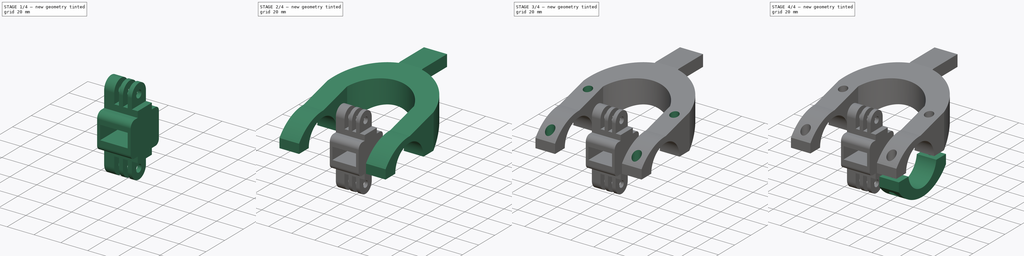
[diagram: build sequence overview — one tinted view per stage of 4, left to right]
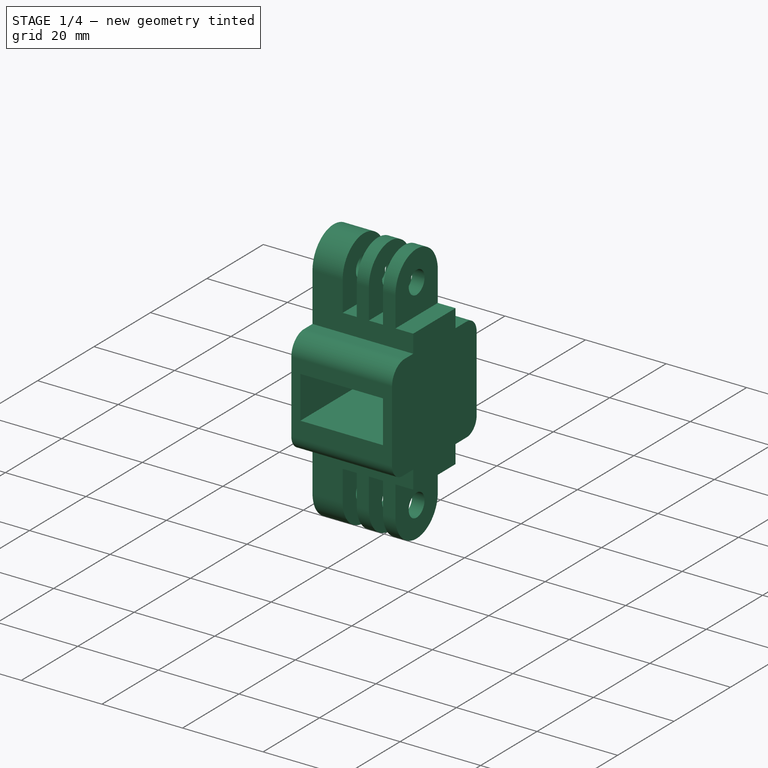
[diagram: stage 1 of 4 — iso view after this stage's code; geometry added in this stage tinted green]
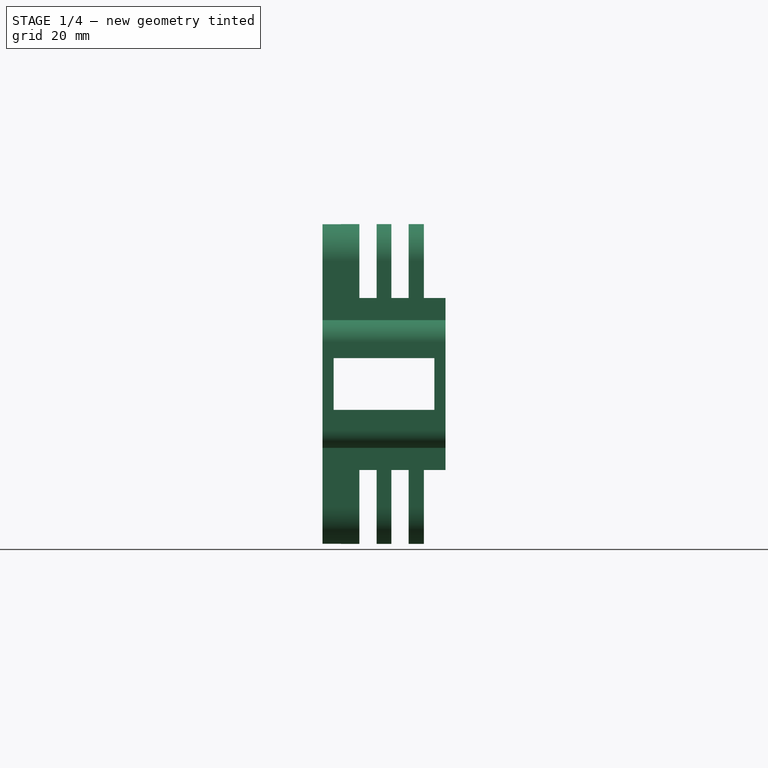
[diagram: stage 1 of 4 — front view after this stage's code; geometry added in this stage tinted green]
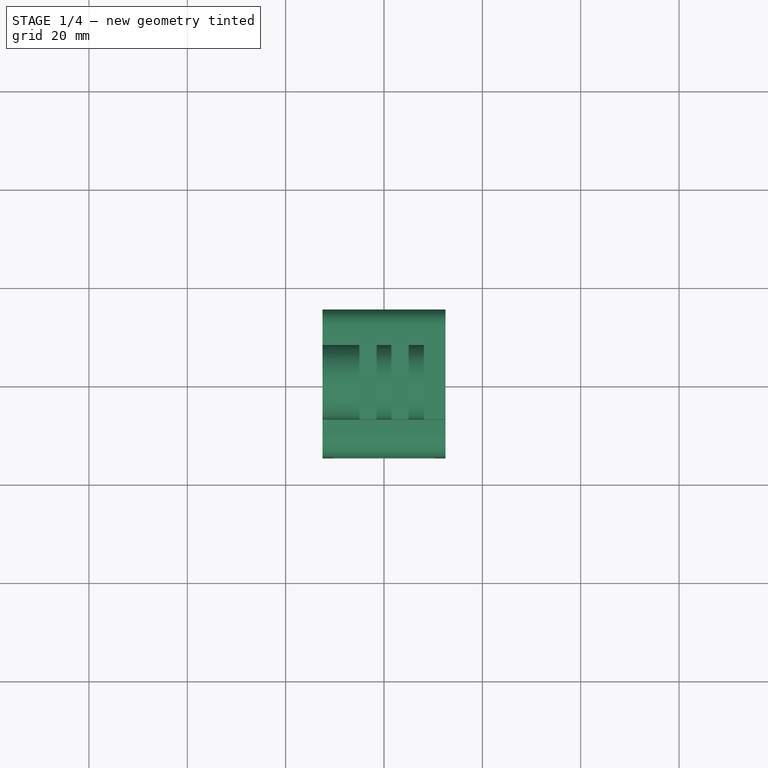
[diagram: stage 1 of 4 — top view after this stage's code; geometry added in this stage tinted green]
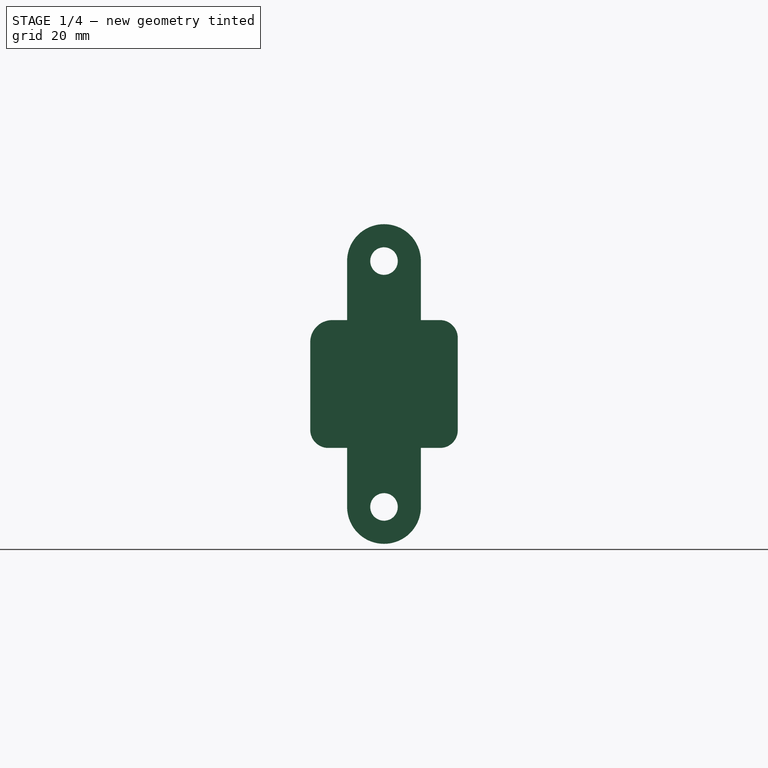
[diagram: stage 1 of 4 — right view after this stage's code; geometry added in this stage tinted green]
FCSTD DOCUMENT  (FreeCAD 0.21Rpre_29277.fc34 (Git))
Label: light-mount-v3
License: All rights reserved
LicenseURL: http://en.wikipedia.org/wiki/All_rights_reserved
objects: Sketcher::SketchObject×12, PartDesign::Pocket×8, PartDesign::Pad×4, PartDesign::Body×3
note: 39 computed .brp shape members not serialized (recipe doc carries the construction recipe); baked Part::Feature solids carry a one-line shape summary decoded from their .brp

FEATURE [Sketcher::SketchObject] Sketch008
  FullyConstrained = true
  MapMode = 5
  Placement = pos=(0,0,0) rot=(0.57735,0.57735,0.57735;2.0944rad)
  Support = -> [YZ_Plane002]
  sketch-geometry (21):
    g0: LineSegment StartX=7.5 StartY=25 StartZ=0 EndX=7.5 EndY=13 EndZ=0
    g1: LineSegment StartX=-7.5 StartY=-25 StartZ=0 EndX=-7.5 EndY=-13 EndZ=0
    g2: Circle CenterX=0 CenterY=25 CenterZ=0 NormalX=0 NormalY=0 NormalZ=1 AngleXU=0 Radius=2.8
    g3: ArcOfCircle CenterX=0 CenterY=25 CenterZ=0 NormalX=0 NormalY=0 NormalZ=1 AngleXU=0 Radius=7.5 StartAngle=0 EndAngle=3.14159
    g4: Circle CenterX=0 CenterY=-25 CenterZ=0 NormalX=0 NormalY=0 NormalZ=1 AngleXU=0 Radius=2.8
    g5: ArcOfCircle CenterX=0 CenterY=-25 CenterZ=0 NormalX=0 NormalY=0 NormalZ=1 AngleXU=0 Radius=7.5 StartAngle=3.14159 EndAngle=6.28319
    g6: LineSegment StartX=-10.498 StartY=13 StartZ=0 EndX=-7.5 EndY=13 EndZ=0
    g7: LineSegment StartX=15 StartY=9.37695 StartZ=0 EndX=15 EndY=-9.41399 EndZ=0
    g8: LineSegment StartX=11.414 StartY=-13 StartZ=0 EndX=7.5 EndY=-13 EndZ=0
    g9: LineSegment StartX=-15 StartY=-9.32341 StartZ=0 EndX=-15 EndY=8.49796 EndZ=0
    g10: LineSegment StartX=7.5 StartY=13 StartZ=0 EndX=11.377 EndY=13 EndZ=0
    g11: LineSegment StartX=-7.5 StartY=13 StartZ=0 EndX=-7.5 EndY=25 EndZ=0
    g12: LineSegment StartX=7.5 StartY=-13 StartZ=0 EndX=7.5 EndY=-25 EndZ=0
    g13: LineSegment StartX=-7.5 StartY=-13 StartZ=0 EndX=-11.3234 EndY=-13 EndZ=0
    g14: ArcOfCircle CenterX=-10.498 CenterY=8.49796 CenterZ=0 NormalX=0 NormalY=0 NormalZ=1 AngleXU=0 Radius=4.50204 StartAngle=1.5708 EndAngle=3.14159
    g15: GeomPoint X=-15 Y=13 Z=0
    g16: ArcOfCircle CenterX=11.377 CenterY=9.37695 CenterZ=0 NormalX=0 NormalY=0 NormalZ=1 AngleXU=0 Radius=3.62305 StartAngle=0 EndAngle=1.5708
    g17: GeomPoint X=15 Y=13 Z=0
    g18: ArcOfCircle CenterX=-11.3234 CenterY=-9.32341 CenterZ=0 NormalX=0 NormalY=0 NormalZ=1 AngleXU=0 Radius=3.67659 StartAngle=3.14159 EndAngle=4.71239
    g19: ArcOfCircle CenterX=11.414 CenterY=-9.41399 CenterZ=0 NormalX=0 NormalY=0 NormalZ=1 AngleXU=0 Radius=3.58601 StartAngle=4.71239 EndAngle=6.28319
    g20: GeomPoint X=15 Y=-13 Z=0
  constraints (56):
    c: Vertical(g1)
    c: Radius(g2) = 2.8
    c: Coincident(g3,g2)
    c: DistanceY(g2) = 25
    c: Coincident(g0,g3)
    c: Coincident(g11,g3)
    c: Coincident(g4,g5)
    c: DistanceX(g4) = 0
    c: DistanceY(g4) = -25
    c: Radius(g4) = 2.8
    c: Radius(g5) = 7.5
    c: DistanceX(g2) = 0
    c: DistanceY(g0) = 25
    c: DistanceY(g11) = 25
    c: DistanceY(g1) = -25
    c: DistanceY(g12) = -25
    c: Coincident(g12,g5)
    c: Coincident(g1,g5)
    c: Horizontal(g6)
    c: Vertical(g7)
    c: Vertical(g9)
    c: DistanceX(g15) = -15
    c: DistanceY(g15) = 13
    c: DistanceX(g17) = 15
    c: DistanceY(g20) = -13
    c: Coincident(g11,g6)
    c: Coincident(g0,g10)
    c: Coincident(g8,g12)
    c: Coincident(g13,g1)
    c: DistanceX(g3) = -7.5
    c: PointOnObject(g15,g6)
    c: PointOnObject(g15,g9)
    c: Tangent(g6,g14) = 1.5708
    c: Tangent(g9,g14) = 1.5708
    c: DistanceX(g14) = -10.498
    c: PointOnObject(g17,g10)
    c: PointOnObject(g17,g7)
    c: Tangent(g10,g16) = 1.5708
    c: Tangent(g7,g16) = 1.5708
    c: DistanceX(g16) = 11.377
    c: Tangent(g13,g18) = 1.5708
    c: Tangent(g9,g18) = 1.5708
    c: DistanceX(g0,g18) = -18.8234
    c: DistanceY(g0,g18) = -22.3234
    c: DistanceX(g16,g18) = -22.7004
    c: DistanceY(g16,g18) = -18.7004
    c: DistanceY(g18) = -9.32341
    c: PointOnObject(g20,g8)
    c: PointOnObject(g20,g7)
    c: Tangent(g8,g19) = 1.5708
    c: Tangent(g7,g19) = 1.5708
    c: DistanceX(g19) = 11.414
    c: DistanceX(g13) = -11.3234
    c: DistanceX(g8) = 11.414
    c: DistanceX(g6) = -7.5
    c: DistanceX(g8) = 7.5
FEATURE [PartDesign::Pad] Pad003  label="tarto-test"
  Direction = (1,-2e-16,3e-16)
  Length = 25
  Length2 = 10
  Midplane = true
  Placement = pos=(0,0,0) rot=(0.57735,0.57735,0.57735;2.0944rad)
  Profile = -> Sketch008
  ReferenceAxis = -> Sketch008 [N_Axis]
  Type = 0
FEATURE [PartDesign::Body] Body  label="felso-tarto"
  Group = -> [Sketch003,Pad001,Sketch006,Pad002,Sketch007,Pocket002,Sketch004,Sketch005,Pocket003,Pocket004,Sketch014,Pocket010]
  Origin = -> Origin
  Tip = -> Pocket010
FEATURE [Sketcher::SketchObject] Sketch015
  FullyConstrained = true
  MapMode = 5
  Placement = pos=(0,0,0) rot=(1,0,0;1.5708rad)
  Support = -> [XZ_Plane002]
  sketch-geometry (28):
    g0: LineSegment StartX=-10.25 StartY=5.25 StartZ=0 EndX=10.25 EndY=5.25 EndZ=0
    g1: LineSegment StartX=10.25 StartY=5.25 StartZ=0 EndX=10.25 EndY=-5.25 EndZ=0
    g2: LineSegment StartX=10.25 StartY=-5.25 StartZ=0 EndX=-10.25 EndY=-5.25 EndZ=0
    g3: LineSegment StartX=-10.25 StartY=-5.25 StartZ=0 EndX=-10.25 EndY=5.25 EndZ=0
    g4: LineSegment StartX=1.5 StartY=32.5 StartZ=0 EndX=5 EndY=32.5 EndZ=0
    g5: LineSegment StartX=5 StartY=32.5 StartZ=0 EndX=5 EndY=17.5 EndZ=0
    g6: LineSegment StartX=5 StartY=17.5 StartZ=0 EndX=1.5 EndY=17.5 EndZ=0
    g7: LineSegment StartX=1.5 StartY=17.5 StartZ=0 EndX=1.5 EndY=32.5 EndZ=0
    g8: LineSegment StartX=8.1 StartY=32.5 StartZ=0 EndX=23.1 EndY=32.5 EndZ=0
    g9: LineSegment StartX=23.1 StartY=32.5 StartZ=0 EndX=23.1 EndY=17.5 EndZ=0
    g10: LineSegment StartX=23.1 StartY=17.5 StartZ=0 EndX=8.1 EndY=17.5 EndZ=0
    g11: LineSegment StartX=8.1 StartY=17.5 StartZ=0 EndX=8.1 EndY=32.5 EndZ=0
    g12: LineSegment StartX=-1.5 StartY=32.5 StartZ=0 EndX=-5 EndY=32.5 EndZ=0
    g13: LineSegment StartX=-5 StartY=32.5 StartZ=0 EndX=-5 EndY=17.5 EndZ=0
    g14: LineSegment StartX=-5 StartY=17.5 StartZ=0 EndX=-1.5 EndY=17.5 EndZ=0
    g15: LineSegment StartX=-1.5 StartY=17.5 StartZ=0 EndX=-1.5 EndY=32.5 EndZ=0
    g16: LineSegment StartX=1.5 StartY=-32.5 StartZ=0 EndX=5 EndY=-32.5 EndZ=0
    g17: LineSegment StartX=5 StartY=-32.5 StartZ=0 EndX=5 EndY=-17.5 EndZ=0
    g18: LineSegment StartX=5 StartY=-17.5 StartZ=0 EndX=1.5 EndY=-17.5 EndZ=0
    g19: LineSegment StartX=1.5 StartY=-17.5 StartZ=0 EndX=1.5 EndY=-32.5 EndZ=0
    g20: LineSegment StartX=8.1 StartY=-32.5 StartZ=0 EndX=23.1 EndY=-32.5 EndZ=0
    g21: LineSegment StartX=23.1 StartY=-32.5 StartZ=0 EndX=23.1 EndY=-17.5 EndZ=0
    g22: LineSegment StartX=23.1 StartY=-17.5 StartZ=0 EndX=8.1 EndY=-17.5 EndZ=0
    g23: LineSegment StartX=8.1 StartY=-17.5 StartZ=0 EndX=8.1 EndY=-32.5 EndZ=0
    g24: LineSegment StartX=-1.5 StartY=-32.5 StartZ=0 EndX=-5 EndY=-32.5 EndZ=0
    g25: LineSegment StartX=-5 StartY=-32.5 StartZ=0 EndX=-5 EndY=-17.5 EndZ=0
    g26: LineSegment StartX=-5 StartY=-17.5 StartZ=0 EndX=-1.5 EndY=-17.5 EndZ=0
    g27: LineSegment StartX=-1.5 StartY=-17.5 StartZ=0 EndX=-1.5 EndY=-32.5 EndZ=0
  constraints (84):
    c: Coincident(g0,g1)
    c: Coincident(g1,g2)
    c: Coincident(g2,g3)
    c: Coincident(g3,g0)
    c: Horizontal(g0)
    c: Horizontal(g2)
    c: Vertical(g1)
    c: Vertical(g3)
    c: DistanceX(g0,g0) = 20.5
    c: DistanceY(g1,g1) = 10.5
    c: DistanceX(g0) = 10.25
    c: DistanceY(g0) = 5.25
    c: Coincident(g4,g5)
    c: Coincident(g5,g6)
    c: Coincident(g6,g7)
    c: Coincident(g7,g4)
    c: Horizontal(g4)
    c: Horizontal(g6)
    c: Vertical(g5)
    c: Vertical(g7)
    c: Coincident(g8,g9)
    c: Coincident(g9,g10)
    c: Coincident(g10,g11)
    c: Coincident(g11,g8)
    c: Horizontal(g8)
    c: Horizontal(g10)
    c: Vertical(g9)
    c: Vertical(g11)
    c: DistanceX(g4,g4) = 3.5
    c: DistanceX(g8,g8) = 15
    c: DistanceX(g4) = 1.5
    c: DistanceY(g4) = 32.5
    c: DistanceX(g8) = 8.1
    c: DistanceY(g8) = 32.5
    c: DistanceY(g9,g9) = 15
    c: DistanceY(g5,g5) = 15
    c: Coincident(g12,g13)
    c: Coincident(g13,g14)
    c: Coincident(g14,g15)
    c: Coincident(g15,g12)
    c: Horizontal(g12)
    c: Horizontal(g14)
    c: Vertical(g13)
    c: Vertical(g15)
    c: DistanceX(g12) = -1.5
    c: DistanceY(g12) = 32.5
    c: DistanceX(g14,g14) = 3.5
    c: DistanceY(g13,g13) = 15
    c: Coincident(g16,g17)
    c: Coincident(g17,g18)
    c: Coincident(g18,g19)
    c: Coincident(g19,g16)
    c: Horizontal(g16)
    c: Horizontal(g18)
    c: Vertical(g17)
    c: Vertical(g19)
    c: Coincident(g20,g21)
    c: Coincident(g21,g22)
    c: Coincident(g22,g23)
    c: Coincident(g23,g20)
    c: Horizontal(g20)
    c: Horizontal(g22)
    c: Vertical(g21)
    c: Vertical(g23)
    c: Coincident(g24,g25)
    c: Coincident(g25,g26)
    c: Coincident(g26,g27)
    c: Horizontal(g24)
    c: Horizontal(g26)
    c: Vertical(g25)
    c: DistanceY(g22) = -17.5
    c: DistanceY(g16) = -32.5
    c: DistanceY(g21,g21) = 15
    c: DistanceY(g17,g17) = 15
    c: DistanceY(g25,g25) = 15
    c: DistanceY(g25) = -17.5
    c: DistanceX(g18) = 1.5
    c: DistanceX(g18,g18) = 3.5
    c: Vertical(g27)
    c: DistanceX(g26) = -1.5
    c: DistanceX(g26,g26) = 3.5
    c: DistanceX(g22,g22) = 15
    c: DistanceX(g22) = 8.1
    c: Coincident(g24,g27)
FEATURE [PartDesign::Pocket] Pocket011  label="kivagasok"
  BaseFeature = -> Pad003
  Direction = (0,1,2e-16)
  Length = 30
  Length2 = 5
  Midplane = true
  Placement = pos=(0,0,0) rot=(0.57735,0.57735,0.57735;2.0944rad)
  Profile = -> Sketch015
  ReferenceAxis = -> Sketch015 [N_Axis]
  Type = 0
FEATURE [Sketcher::SketchObject] Sketch016
  AttachmentOffset = pos=(0,0,-12.5) rot=(0,0,1;0rad)
  FullyConstrained = true
  MapMode = 5
  Placement = pos=(-12.5,2.8e-15,-2.8e-15) rot=(0.57735,0.57735,0.57735;2.0944rad)
  Support = -> [YZ_Plane002]
  sketch-geometry (14):
    g0: LineSegment StartX=-2.45 StartY=20.7565 StartZ=0 EndX=2.45 EndY=20.7565 EndZ=0
    g1: LineSegment StartX=2.45 StartY=20.7565 StartZ=0 EndX=4.9 EndY=25 EndZ=0
    g2: LineSegment StartX=4.9 StartY=25 StartZ=0 EndX=2.45 EndY=29.2435 EndZ=0
    g3: LineSegment StartX=2.45 StartY=29.2435 StartZ=0 EndX=-2.45 EndY=29.2435 EndZ=0
    g4: LineSegment StartX=-2.45 StartY=29.2435 StartZ=0 EndX=-4.9 EndY=25 EndZ=0
    g5: LineSegment StartX=-4.9 StartY=25 StartZ=0 EndX=-2.45 EndY=20.7565 EndZ=0
    g6: Circle CenterX=0 CenterY=25 CenterZ=0 NormalX=0 NormalY=0 NormalZ=1 AngleXU=0 Radius=4.9
    g7: LineSegment StartX=2.45 StartY=-20.7565 StartZ=0 EndX=-2.45 EndY=-20.7565 EndZ=0
    g8: LineSegment StartX=-2.45 StartY=-20.7565 StartZ=0 EndX=-4.9 EndY=-25 EndZ=0
    g9: LineSegment StartX=-4.9 StartY=-25 StartZ=0 EndX=-2.45 EndY=-29.2435 EndZ=0
    g10: LineSegment StartX=-2.45 StartY=-29.2435 StartZ=0 EndX=2.45 EndY=-29.2435 EndZ=0
    g11: LineSegment StartX=2.45 StartY=-29.2435 StartZ=0 EndX=4.9 EndY=-25 EndZ=0
    g12: LineSegment StartX=4.9 StartY=-25 StartZ=0 EndX=2.45 EndY=-20.7565 EndZ=0
    g13: Circle CenterX=0 CenterY=-25 CenterZ=0 NormalX=0 NormalY=0 NormalZ=1 AngleXU=0 Radius=4.9
  constraints (34):
    c: Coincident(g0,g1)
    c: Coincident(g1,g2)
    c: Coincident(g2,g3)
    c: Coincident(g3,g4)
    c: Coincident(g4,g5)
    c: Coincident(g5,g0)
    c: Equal(g0, g1-g5) x5
    c: PointOnObject(g0,g6)
    c: PointOnObject(g1,g6)
    c: PointOnObject(g2,g6)
    c: PointOnObject(g3,g6)
    c: PointOnObject(g4,g6)
    c: PointOnObject(g5,g6)
    c: PointOnObject(g6,g-2)
    c: Coincident(g7,g8)
    c: Coincident(g8,g9)
    c: Coincident(g9,g10)
    c: Coincident(g10,g11)
    c: Coincident(g11,g12)
    c: Coincident(g12,g7)
    c: Equal(g7, g8-g12) x5
    c: PointOnObject(g7,g13)
    c: PointOnObject(g8,g13)
    c: PointOnObject(g9,g13)
    c: PointOnObject(g10,g13)
    c: PointOnObject(g11,g13)
    c: PointOnObject(g12,g13)
    c: PointOnObject(g13,g-2)
    c: Horizontal(g3)
    c: Horizontal(g7)
    c: DistanceY(g6) = 25
    c: DistanceY(g13) = -25
    c: Radius(g6) = 4.9
    c: Radius(g13) = 4.9
FEATURE [PartDesign::Pocket] Pocket012  label="anya-hely"
  BaseFeature = -> Pocket011
  Direction = (-1,2e-16,-3e-16)
  Length = 3.5
  Length2 = 5
  Placement = pos=(0,0,0) rot=(0.57735,0.57735,0.57735;2.0944rad)
  Profile = -> Sketch016
  ReferenceAxis = -> Sketch016 [N_Axis]
  Reversed = true
  Type = 0
FEATURE [PartDesign::Body] Body002  label="gopro-mount"
  Group = -> [Sketch008,Pad003,Sketch015,Pocket011,Sketch016,Pocket012]
  Origin = -> Origin002
  Placement = pos=(0,120,30) rot=(0,0,1;0rad)
  Tip = -> Pocket012
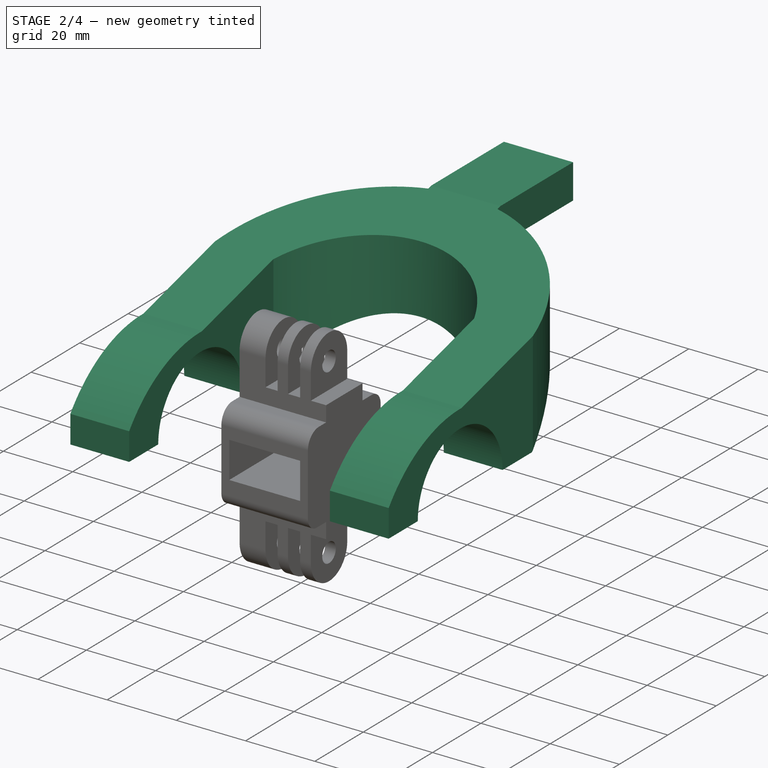
[diagram: stage 2 of 4 — iso view after this stage's code; geometry added in this stage tinted green]
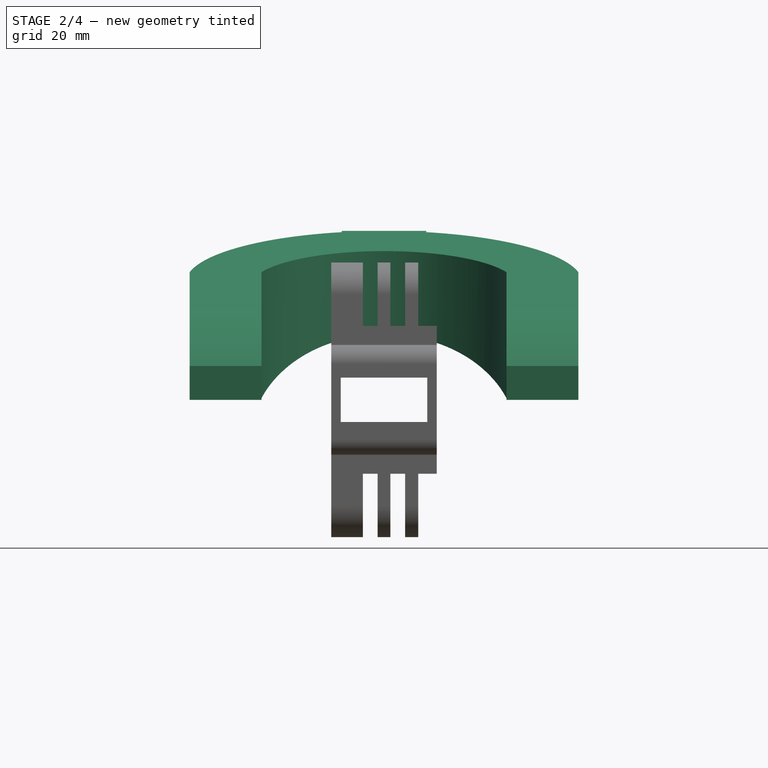
[diagram: stage 2 of 4 — front view after this stage's code; geometry added in this stage tinted green]
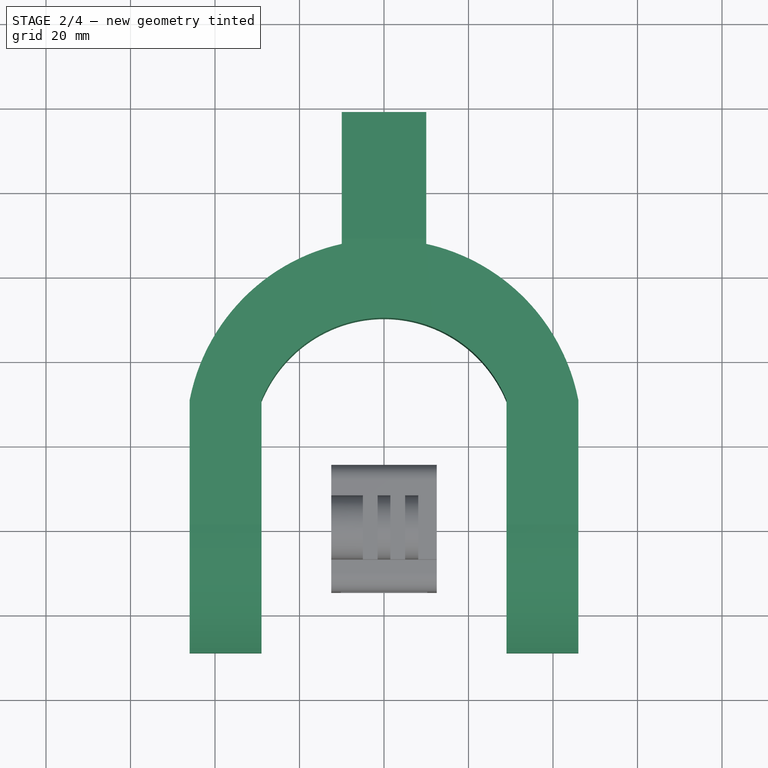
[diagram: stage 2 of 4 — top view after this stage's code; geometry added in this stage tinted green]
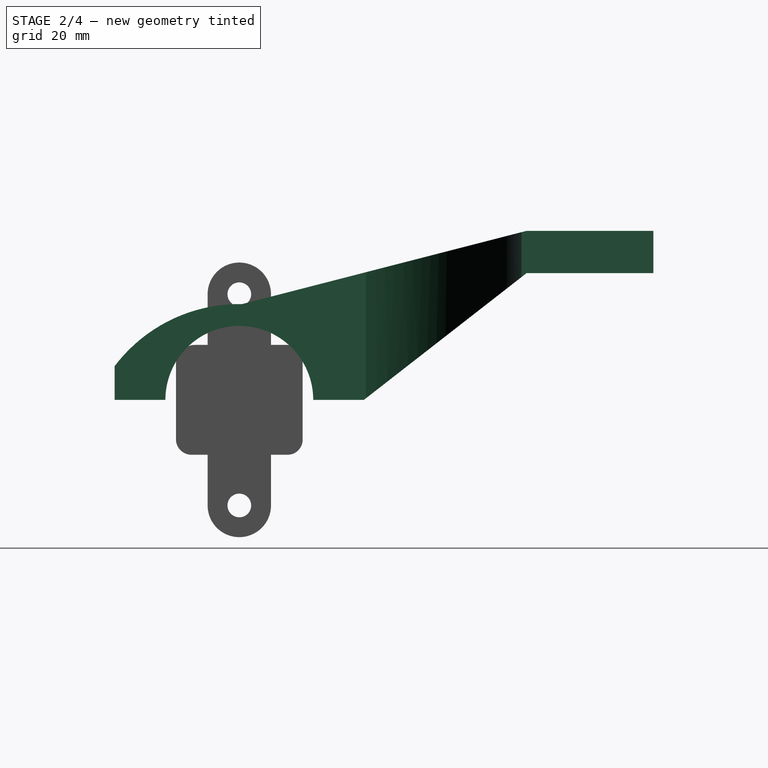
[diagram: stage 2 of 4 — right view after this stage's code; geometry added in this stage tinted green]
FEATURE [PartDesign::Body] Body001  label="also-bilincs"
  Group = -> [Sketch,Pad,Sketch001,Pocket,Sketch002,Pocket001]
  Origin = -> Origin001
  Tip = -> Pocket001
FEATURE [Sketcher::SketchObject] Sketch003
  FullyConstrained = true
  MapMode = 5
  Placement = pos=(0,0,0) rot=(0.57735,0.57735,0.57735;2.0944rad)
  Support = -> [YZ_Plane]
  sketch-geometry (6):
    g0: ArcOfCircle CenterX=0 CenterY=0 CenterZ=0 NormalX=0 NormalY=0 NormalZ=1 AngleXU=0 Radius=17.5 StartAngle=0 EndAngle=3.14159
    g1: LineSegment StartX=-17.5 StartY=2.1e-15 StartZ=0 EndX=-29.5 EndY=0 EndZ=0
    g2: LineSegment StartX=17.5 StartY=0 StartZ=0 EndX=29.5 EndY=0 EndZ=0
    g3: LineSegment StartX=-29.5 StartY=0 StartZ=0 EndX=-29.5 EndY=8 EndZ=0
    g4: LineSegment StartX=29.5 StartY=0 StartZ=0 EndX=29.5 EndY=8 EndZ=0
    g5: ArcOfCircle CenterX=-3e-16 CenterY=-14.3327 CenterZ=0 NormalX=0 NormalY=0 NormalZ=1 AngleXU=0 Radius=37 StartAngle=0.647992 EndAngle=2.4936
  constraints (19):
    c: Coincident(g0,g-1)
    c: PointOnObject(g0,g-1)
    c: PointOnObject(g0,g-1)
    c: Radius(g0) = 17.5
    c: Coincident(g1,g0)
    c: PointOnObject(g1,g-1)
    c: Coincident(g2,g0)
    c: PointOnObject(g2,g-1)
    c: DistanceX(g1,g1) = 12
    c: DistanceX(g2,g2) = 12
    c: Coincident(g3,g1)
    c: Vertical(g3)
    c: Coincident(g4,g2)
    c: Vertical(g4)
    c: DistanceY(g3,g3) = 8
    c: DistanceY(g4,g4) = 8
    c: Coincident(g5,g3)
    c: Coincident(g5,g4)
    c: Radius(g5) = 37
FEATURE [PartDesign::Pad] Pad001  label="felso-bilincs"
  Direction = (1,-2e-16,3e-16)
  Length = 92
  Length2 = 10
  Midplane = true
  Placement = pos=(0,0,0) rot=(0.57735,0.57735,0.57735;2.0944rad)
  Profile = -> Sketch003
  ReferenceAxis = -> Sketch003 [N_Axis]
  Type = 0
FEATURE [Sketcher::SketchObject] Sketch006
  FullyConstrained = true
  MapMode = 5
  Placement = pos=(0,0,0) rot=(0.57735,0.57735,0.57735;2.0944rad)
  Support = -> [YZ_Plane]
  sketch-geometry (6):
    g0: LineSegment StartX=0 StartY=22.5 StartZ=0 EndX=29.5 EndY=3.6e-15 EndZ=0
    g1: LineSegment StartX=0 StartY=22.5 StartZ=0 EndX=68 EndY=40 EndZ=0
    g2: LineSegment StartX=29.5 StartY=3.6e-15 StartZ=0 EndX=68 EndY=30 EndZ=0
    g3: LineSegment StartX=68 StartY=40 StartZ=0 EndX=98 EndY=40 EndZ=0
    g4: LineSegment StartX=98 StartY=40 StartZ=0 EndX=98 EndY=30 EndZ=0
    g5: LineSegment StartX=98 StartY=30 StartZ=0 EndX=68 EndY=30 EndZ=0
  constraints (18):
    c: PointOnObject(g0,g-2)
    c: PointOnObject(g0,g-1)
    c: Coincident(g1,g0)
    c: DistanceY(g0) = 22.5
    c: DistanceX(g1,g1) = 68
    c: DistanceX(g0) = 29.5
    c: DistanceY(g2,g1) = 10
    c: Coincident(g2,g0)
    c: DistanceY(g1) = 40
    c: DistanceX(g2) = 68
    c: Coincident(g1,g3)
    c: Horizontal(g3)
    c: Coincident(g3,g4)
    c: Vertical(g4)
    c: Coincident(g4,g5)
    c: Coincident(g5,g2)
    c: Horizontal(g5)
    c: DistanceX(g3,g3) = 30
FEATURE [PartDesign::Pad] Pad002  label="felso-trt-test"
  BaseFeature = -> Pad001
  Direction = (1,-2e-16,3e-16)
  Length = 92
  Length2 = 10
  Midplane = true
  Placement = pos=(0,0,0) rot=(0.57735,0.57735,0.57735;2.0944rad)
  Profile = -> Sketch006
  ReferenceAxis = -> Sketch006 [N_Axis]
  Type = 0
FEATURE [Sketcher::SketchObject] Sketch007
  AttachmentOffset = pos=(0,0,40) rot=(0,0,1;0rad)
  FullyConstrained = true
  MapMode = 5
  Placement = pos=(0,0,40) rot=(0,0,1;0rad)
  Support = -> [XY_Plane]
  sketch-geometry (16):
    g0: LineSegment StartX=29 StartY=30 StartZ=0 EndX=29 EndY=-29.5 EndZ=0
    g1: LineSegment StartX=29 StartY=-29.5 StartZ=0 EndX=-29 EndY=-29.5 EndZ=0
    g2: LineSegment StartX=-29 StartY=-29.5 StartZ=0 EndX=-29 EndY=30 EndZ=0
    g3: ArcOfCircle CenterX=1.5e-15 CenterY=18 CenterZ=0 NormalX=0 NormalY=0 NormalZ=1 AngleXU=0 Radius=31.3847 StartAngle=0.39234 EndAngle=2.74925
    g4: GeomPoint X=-46 Y=30 Z=0
    g5: GeomPoint X=46 Y=30 Z=0
    g6: ArcOfCircle CenterX=-5.1e-15 CenterY=21 CenterZ=0 NormalX=0 NormalY=0 NormalZ=1 AngleXU=0 Radius=46.8722 StartAngle=0.193211 EndAngle=1.3558
    g7: LineSegment StartX=-10 StartY=66.793 StartZ=0 EndX=-10 EndY=95 EndZ=0
    g8: LineSegment StartX=-10 StartY=95 StartZ=0 EndX=-10 EndY=103 EndZ=0
    g9: LineSegment StartX=-10 StartY=103 StartZ=0 EndX=-46 EndY=103 EndZ=0
    g10: LineSegment StartX=-46 StartY=103 StartZ=0 EndX=-46 EndY=30 EndZ=0
    g11: LineSegment StartX=10 StartY=66.793 StartZ=0 EndX=10 EndY=95 EndZ=0
    g12: LineSegment StartX=10 StartY=95 StartZ=0 EndX=10 EndY=103 EndZ=0
    g13: LineSegment StartX=10 StartY=103 StartZ=0 EndX=46 EndY=103 EndZ=0
    g14: LineSegment StartX=46 StartY=103 StartZ=0 EndX=46 EndY=30 EndZ=0
    g15: ArcOfCircle CenterX=-5.1e-15 CenterY=21 CenterZ=0 NormalX=0 NormalY=0 NormalZ=1 AngleXU=0 Radius=46.8722 StartAngle=1.7858 EndAngle=2.94838
  constraints (46):
    c: Coincident(g0,g1)
    c: Coincident(g1,g2)
    c: Horizontal(g1)
    c: Vertical(g0)
    c: Vertical(g2)
    c: DistanceX(g1) = -29
    c: DistanceY(g1) = -29.5
    c: DistanceX(g0) = 29
    c: DistanceY(g0) = 30
    c: DistanceY(g2) = 30
    c: Coincident(g3,g0)
    c: Coincident(g3,g2)
    c: DistanceY(g3) = 18
    c: DistanceX(g4) = -46
    c: DistanceY(g4) = 30
    c: DistanceX(g5) = 46
    c: DistanceY(g5) = 30
    c: Coincident(g15,g4)
    c: Coincident(g6,g5)
    c: DistanceY(g6) = 21
    c: Coincident(g7,g8)
    c: Vertical(g8)
    c: Coincident(g8,g9)
    c: Horizontal(g9)
    c: Coincident(g9,g10)
    c: Coincident(g10,g15)
    c: Vertical(g10)
    c: Coincident(g11,g12)
    c: Vertical(g12)
    c: Coincident(g12,g13)
    c: Horizontal(g13)
    c: Coincident(g13,g14)
    c: Coincident(g14,g6)
    c: Vertical(g14)
    c: DistanceY(g14,g14) = 73
    c: DistanceY(g12,g12) = 8
    c: DistanceY(g8,g8) = 8
    c: DistanceY(g10,g10) = 73
    c: DistanceX(g13,g13) = 36
    c: DistanceX(g9,g9) = 36
    c: DistanceX(g7,g7) = 0
    c: DistanceX(g11,g11) = 0
    c: Equal(g6,g15)
    c: Coincident(g6,g11)
    c: Coincident(g15,g7)
    c: Coincident(g6,g15)
FEATURE [PartDesign::Pocket] Pocket002  label="felso-test-kivagas"
  BaseFeature = -> Pad002
  Direction = (0,0,-1)
  Length = 40
  Length2 = 5
  Placement = pos=(0,0,0) rot=(0.57735,0.57735,0.57735;2.0944rad)
  Profile = -> Sketch007
  ReferenceAxis = -> Sketch007 [N_Axis]
  Type = 0
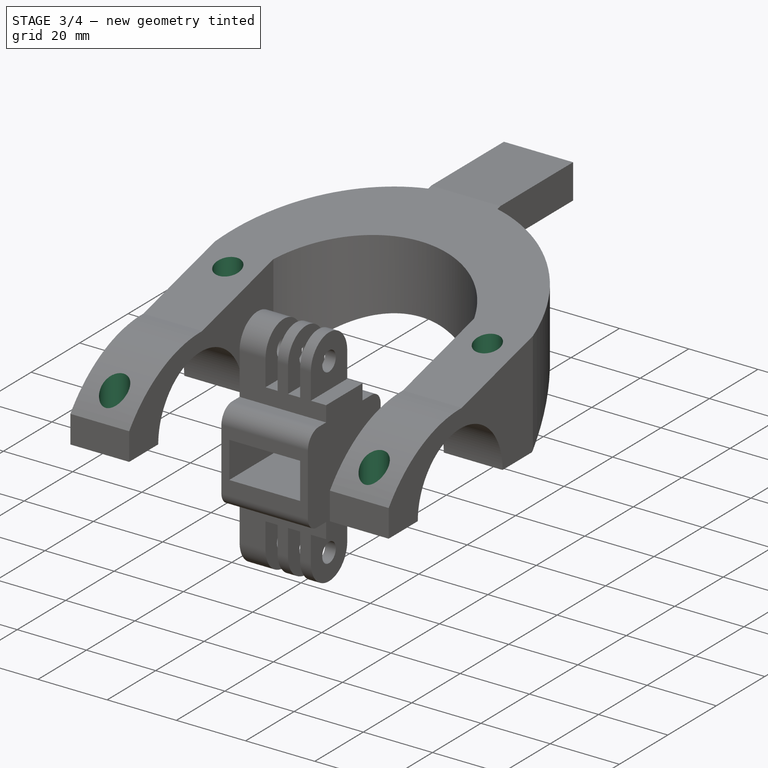
[diagram: stage 3 of 4 — iso view after this stage's code; geometry added in this stage tinted green]
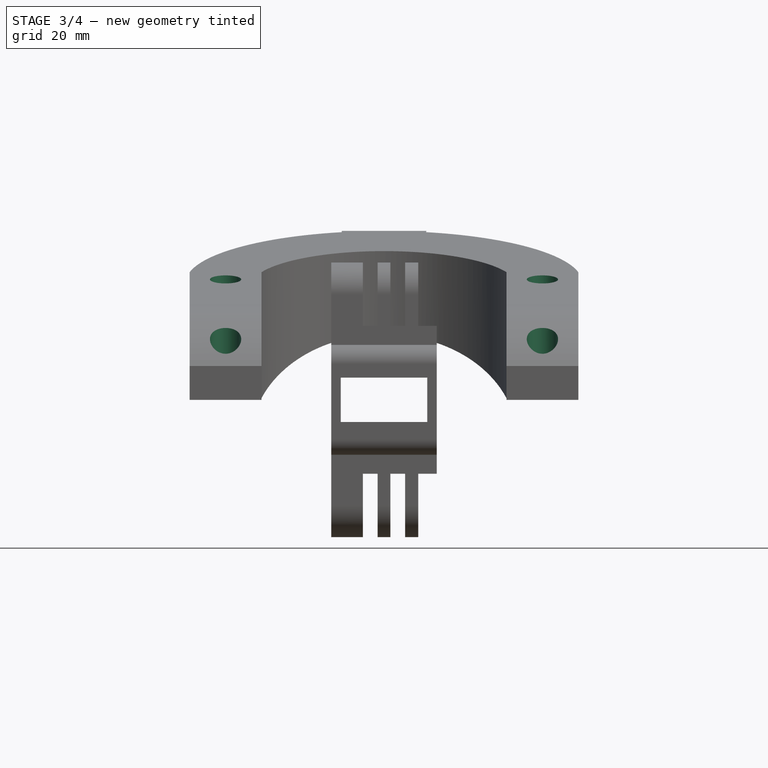
[diagram: stage 3 of 4 — front view after this stage's code; geometry added in this stage tinted green]
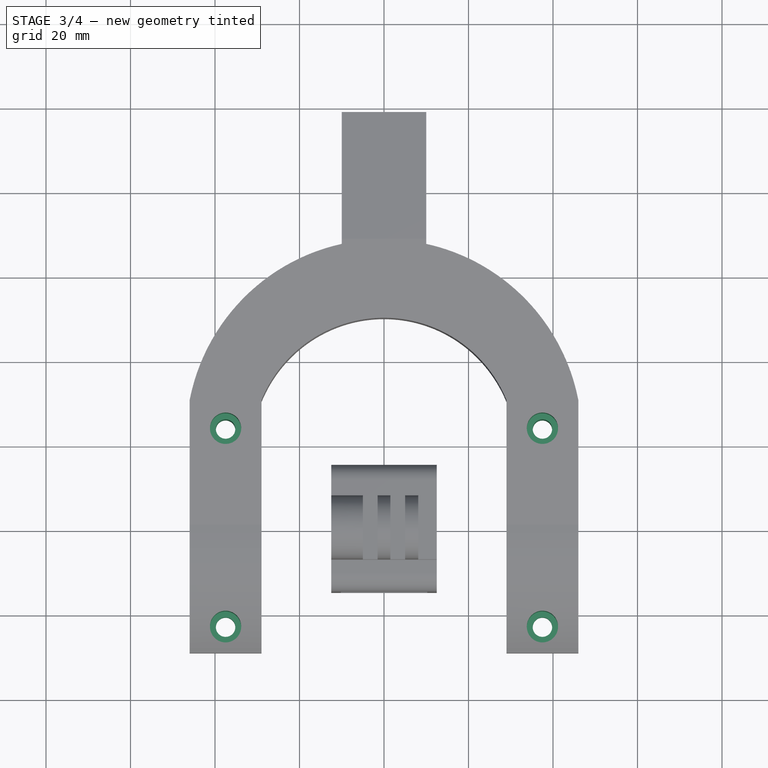
[diagram: stage 3 of 4 — top view after this stage's code; geometry added in this stage tinted green]
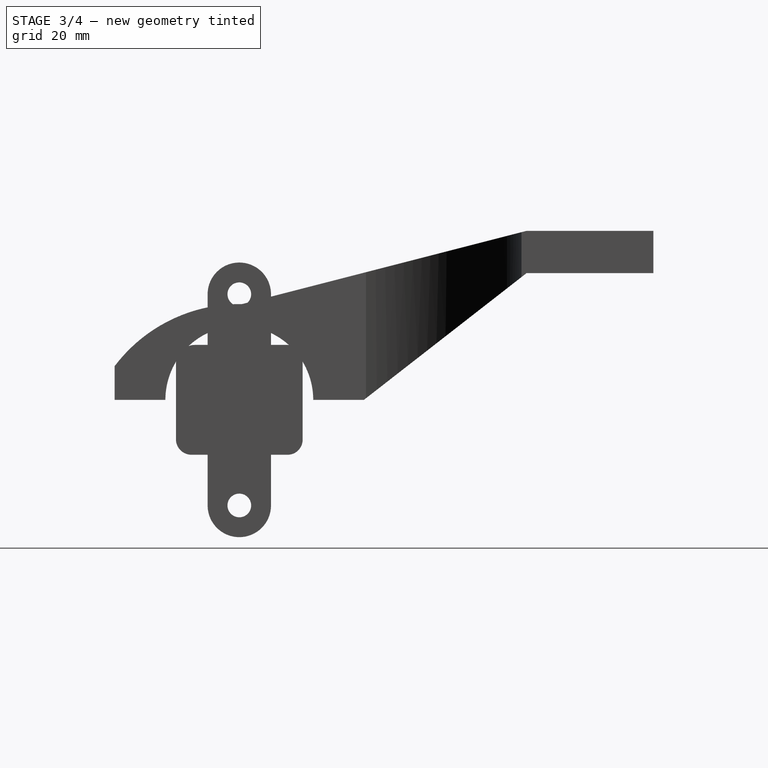
[diagram: stage 3 of 4 — right view after this stage's code; geometry added in this stage tinted green]
FEATURE [Sketcher::SketchObject] Sketch004  label="furatok"
  FullyConstrained = true
  MapMode = 5
  Support = -> [XY_Plane]
  sketch-geometry (4):
    g0: Circle CenterX=37.5 CenterY=23.35 CenterZ=0 NormalX=0 NormalY=0 NormalZ=1 AngleXU=0 Radius=2.3
    g1: Circle CenterX=37.5 CenterY=-23.35 CenterZ=0 NormalX=0 NormalY=0 NormalZ=1 AngleXU=0 Radius=2.3
    g2: Circle CenterX=-37.5 CenterY=23.35 CenterZ=0 NormalX=0 NormalY=0 NormalZ=1 AngleXU=0 Radius=2.3
    g3: Circle CenterX=-37.5 CenterY=-23.35 CenterZ=0 NormalX=0 NormalY=0 NormalZ=1 AngleXU=0 Radius=2.3
  constraints (12):
    c: DistanceX(g0) = 37.5
    c: DistanceY(g0) = 23.35
    c: DistanceX(g1) = 37.5
    c: DistanceY(g1) = -23.35
    c: DistanceX(g3) = -37.5
    c: DistanceY(g3) = -23.35
    c: DistanceX(g2) = -37.5
    c: DistanceY(g2) = 23.35
    c: Radius(g0) = 2.3
    c: Radius(g1) = 2.3
    c: Radius(g3) = 2.3
    c: Radius(g2) = 2.3
FEATURE [Sketcher::SketchObject] Sketch005  label="csv-fejek"
  AttachmentOffset = pos=(0,0,6) rot=(0,0,1;0rad)
  FullyConstrained = true
  MapMode = 5
  Placement = pos=(0,0,6) rot=(0,0,1;0rad)
  Support = -> [XY_Plane]
  sketch-geometry (2):
    g0: Circle CenterX=-37.5 CenterY=-23.35 CenterZ=0 NormalX=0 NormalY=0 NormalZ=1 AngleXU=0 Radius=3.7
    g1: Circle CenterX=37.5 CenterY=-23.35 CenterZ=0 NormalX=0 NormalY=0 NormalZ=1 AngleXU=0 Radius=3.7
  constraints (6):
    c: DistanceX(g0) = -37.5
    c: DistanceY(g0) = -23.35
    c: DistanceX(g1) = 37.5
    c: DistanceY(g1) = -23.35
    c: Radius(g1) = 3.7
    c: Radius(g0) = 3.7
FEATURE [PartDesign::Pocket] Pocket003  label="csv-furatok"
  BaseFeature = -> Pocket002
  Direction = (0,0,-1)
  Length = 25
  Length2 = 5
  Placement = pos=(0,0,0) rot=(0.57735,0.57735,0.57735;2.0944rad)
  Profile = -> Sketch004
  ReferenceAxis = -> Sketch004 [N_Axis]
  Reversed = true
  Type = 0
FEATURE [PartDesign::Pocket] Pocket004  label="csv-fejek-hatso"
  BaseFeature = -> Pocket003
  Direction = (0,0,-1)
  Length = 35
  Length2 = 5
  Placement = pos=(0,0,0) rot=(0.57735,0.57735,0.57735;2.0944rad)
  Profile = -> Sketch005
  ReferenceAxis = -> Sketch005 [N_Axis]
  Reversed = true
  Type = 0
FEATURE [Sketcher::SketchObject] Sketch014
  AttachmentOffset = pos=(0,0,18) rot=(0,0,1;0rad)
  FullyConstrained = true
  MapMode = 5
  Placement = pos=(0,0,18) rot=(0,0,1;0rad)
  Support = -> [XY_Plane]
  sketch-geometry (2):
    g0: Circle CenterX=-37.5 CenterY=23.35 CenterZ=0 NormalX=0 NormalY=0 NormalZ=1 AngleXU=0 Radius=3.7
    g1: Circle CenterX=37.5 CenterY=23.35 CenterZ=0 NormalX=0 NormalY=0 NormalZ=1 AngleXU=0 Radius=3.7
  constraints (6):
    c: DistanceX(g1) = 37.5
    c: DistanceY(g1) = 23.35
    c: DistanceX(g0) = -37.5
    c: DistanceY(g0) = 23.35
    c: Radius(g1) = 3.7
    c: Radius(g0) = 3.7
FEATURE [PartDesign::Pocket] Pocket010  label="csv-fejek-elso"
  BaseFeature = -> Pocket004
  Direction = (0,0,-1)
  Length = 12
  Length2 = 5
  Placement = pos=(0,0,0) rot=(0.57735,0.57735,0.57735;2.0944rad)
  Profile = -> Sketch014
  ReferenceAxis = -> Sketch014 [N_Axis]
  Reversed = true
  Type = 0
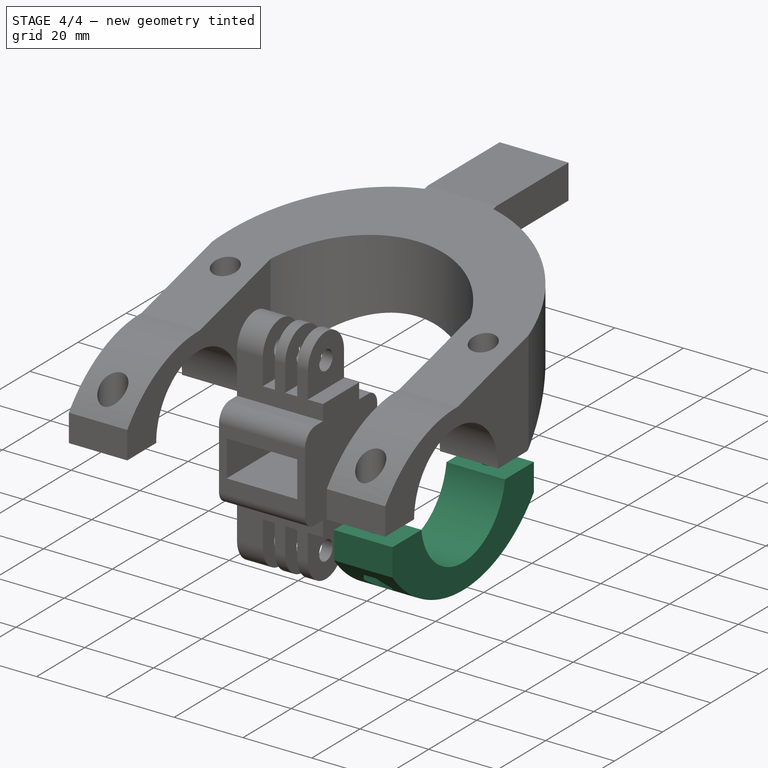
[diagram: stage 4 of 4 — iso view after this stage's code; geometry added in this stage tinted green]
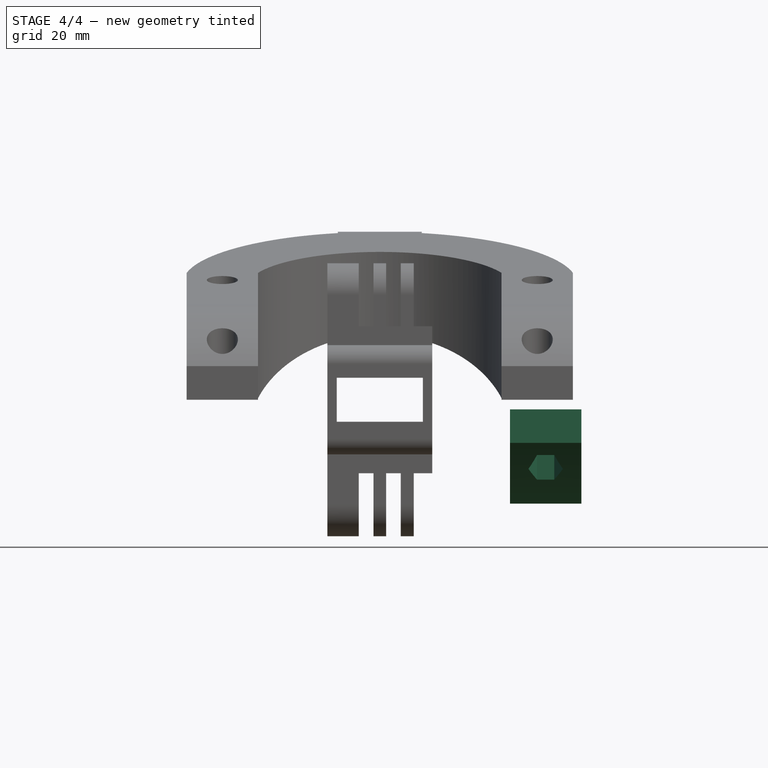
[diagram: stage 4 of 4 — front view after this stage's code; geometry added in this stage tinted green]
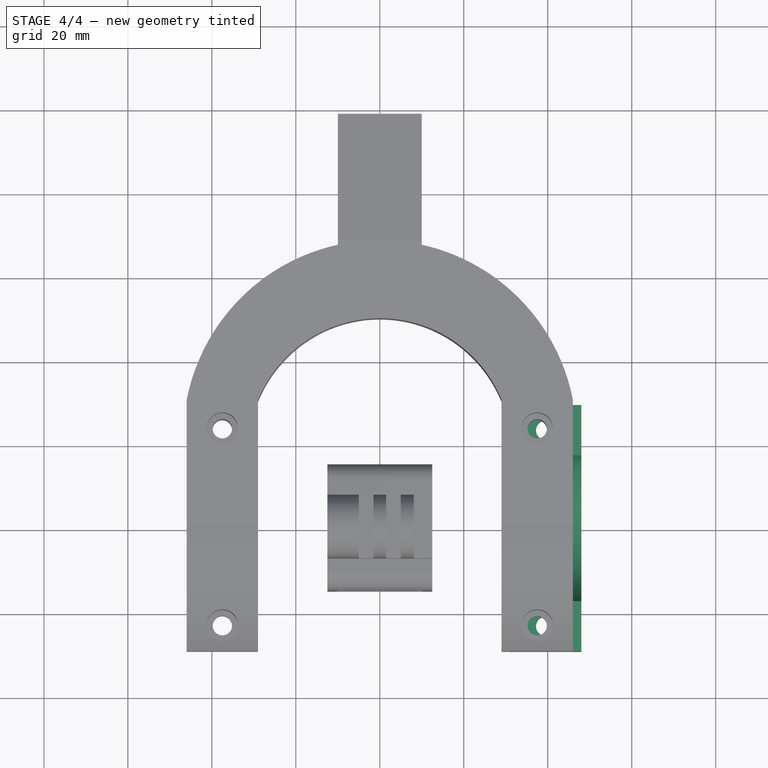
[diagram: stage 4 of 4 — top view after this stage's code; geometry added in this stage tinted green]
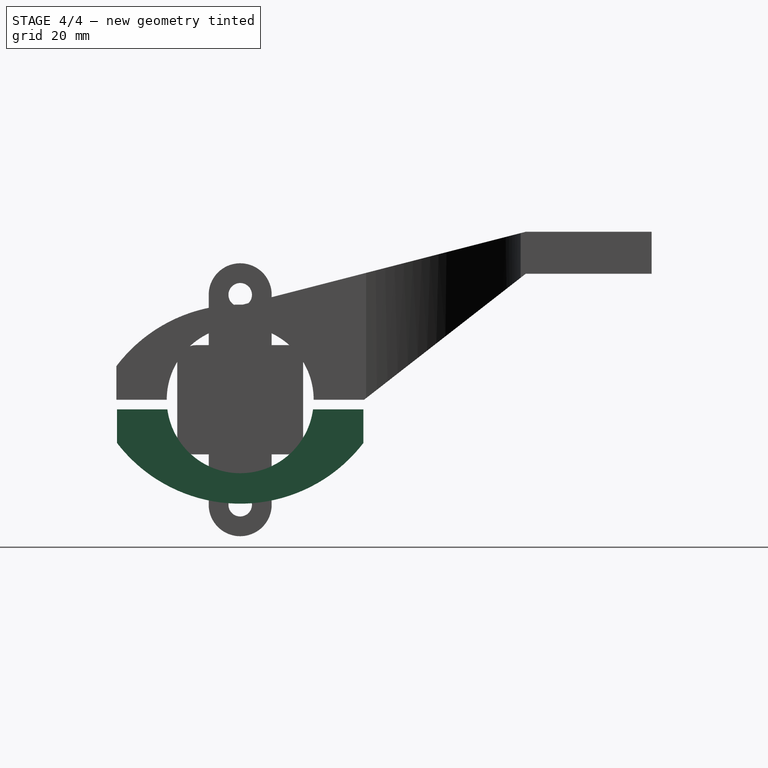
[diagram: stage 4 of 4 — right view after this stage's code; geometry added in this stage tinted green]
FEATURE [Sketcher::SketchObject] Sketch
  AttachmentOffset = pos=(0,0,31) rot=(0,0,1;0rad)
  FullyConstrained = true
  MapMode = 5
  Placement = pos=(31,-6.9e-15,6.9e-15) rot=(0.57735,0.57735,0.57735;2.0944rad)
  Support = -> [YZ_Plane001]
  sketch-geometry (6):
    g0: ArcOfCircle CenterX=0 CenterY=0 CenterZ=0 NormalX=0 NormalY=0 NormalZ=1 AngleXU=0 Radius=17.5 StartAngle=3.27262 EndAngle=6.15216
    g1: LineSegment StartX=-29.35 StartY=-2.28637 StartZ=0 EndX=-17.35 EndY=-2.28637 EndZ=0
    g2: LineSegment StartX=17.35 StartY=-2.28637 StartZ=0 EndX=29.35 EndY=-2.28637 EndZ=0
    g3: LineSegment StartX=-29.35 StartY=-2.28637 StartZ=0 EndX=-29.35 EndY=-10.2864 EndZ=0
    g4: LineSegment StartX=29.35 StartY=-2.28637 StartZ=0 EndX=29.35 EndY=-10.2864 EndZ=0
    g5: ArcOfCircle CenterX=8.9e-15 CenterY=12.2431 CenterZ=0 NormalX=0 NormalY=0 NormalZ=1 AngleXU=0 Radius=37 StartAngle=3.79627 EndAngle=5.62851
  constraints (19):
    c: Coincident(g0,g-1)
    c: Radius(g0) = 17.5
    c: Horizontal(g1)
    c: Horizontal(g2)
    c: DistanceX(g2,g2) = 12
    c: DistanceX(g1,g1) = 12
    c: Coincident(g0,g2)
    c: Coincident(g0,g1)
    c: DistanceX(g0) = -17.35
    c: DistanceX(g0) = 17.35
    c: Coincident(g3,g1)
    c: Vertical(g3)
    c: Coincident(g4,g2)
    c: Vertical(g4)
    c: DistanceY(g4,g4) = 8
    c: DistanceY(g3,g3) = 8
    c: Coincident(g5,g3)
    c: Coincident(g5,g4)
    c: Radius(g5) = 37
FEATURE [PartDesign::Pad] Pad  label="also-bil-j"
  Direction = (1,-2e-16,3e-16)
  Length = 17
  Length2 = 10
  Placement = pos=(0,0,0) rot=(0.57735,0.57735,0.57735;2.0944rad)
  Profile = -> Sketch
  ReferenceAxis = -> Sketch [N_Axis]
  Type = 0
FEATURE [Sketcher::SketchObject] Sketch001
  AttachmentOffset = pos=(0,0,-7) rot=(0,0,1;0rad)
  FullyConstrained = true
  MapMode = 5
  Placement = pos=(0,0,-7) rot=(0,0,1;0rad)
  Support = -> [XY_Plane001]
  sketch-geometry (14):
    g0: LineSegment StartX=43.6 StartY=23.35 StartZ=0 EndX=41.55 EndY=26.9007 EndZ=0
    g1: LineSegment StartX=41.55 StartY=26.9007 StartZ=0 EndX=37.45 EndY=26.9007 EndZ=0
    g2: LineSegment StartX=37.45 StartY=26.9007 StartZ=0 EndX=35.4 EndY=23.35 EndZ=0
    g3: LineSegment StartX=35.4 StartY=23.35 StartZ=0 EndX=37.45 EndY=19.7993 EndZ=0
    g4: LineSegment StartX=37.45 StartY=19.7993 StartZ=0 EndX=41.55 EndY=19.7993 EndZ=0
    g5: LineSegment StartX=41.55 StartY=19.7993 StartZ=0 EndX=43.6 EndY=23.35 EndZ=0
    g6: Circle CenterX=39.5 CenterY=23.35 CenterZ=0 NormalX=0 NormalY=0 NormalZ=1 AngleXU=0 Radius=4.1
    g7: LineSegment StartX=43.6 StartY=-23.35 StartZ=0 EndX=41.55 EndY=-19.7993 EndZ=0
    g8: LineSegment StartX=41.55 StartY=-19.7993 StartZ=0 EndX=37.45 EndY=-19.7993 EndZ=0
    g9: LineSegment StartX=37.45 StartY=-19.7993 StartZ=0 EndX=35.4 EndY=-23.35 EndZ=0
    g10: LineSegment StartX=35.4 StartY=-23.35 StartZ=0 EndX=37.45 EndY=-26.9007 EndZ=0
    g11: LineSegment StartX=37.45 StartY=-26.9007 StartZ=0 EndX=41.55 EndY=-26.9007 EndZ=0
    g12: LineSegment StartX=41.55 StartY=-26.9007 StartZ=0 EndX=43.6 EndY=-23.35 EndZ=0
    g13: Circle CenterX=39.5 CenterY=-23.35 CenterZ=0 NormalX=0 NormalY=0 NormalZ=1 AngleXU=0 Radius=4.1
  constraints (34):
    c: Coincident(g0,g1)
    c: Coincident(g1,g2)
    c: Coincident(g2,g3)
    c: Coincident(g3,g4)
    c: Coincident(g4,g5)
    c: Coincident(g5,g0)
    c: Equal(g0, g1-g5) x5
    c: PointOnObject(g0,g6)
    c: PointOnObject(g1,g6)
    c: PointOnObject(g2,g6)
    c: PointOnObject(g3,g6)
    c: PointOnObject(g4,g6)
    c: PointOnObject(g5,g6)
    c: Coincident(g7,g8)
    c: Coincident(g8,g9)
    c: Coincident(g9,g10)
    c: Coincident(g10,g11)
    c: Coincident(g11,g12)
    c: Coincident(g12,g7)
    c: Equal(g7, g8-g12) x5
    c: PointOnObject(g7,g13)
    c: PointOnObject(g8,g13)
    c: PointOnObject(g9,g13)
    c: PointOnObject(g10,g13)
    c: PointOnObject(g11,g13)
    c: PointOnObject(g12,g13)
    c: Horizontal(g1)
    c: Horizontal(g8)
    c: DistanceX(g6) = 39.5
    c: DistanceY(g6) = 23.35
    c: DistanceX(g13) = 39.5
    c: DistanceY(g13) = -23.35
    c: Radius(g6) = 4.1
    c: Radius(g13) = 4.1
FEATURE [PartDesign::Pocket] Pocket  label="csav-fejek"
  BaseFeature = -> Pad
  Direction = (0,0,-1)
  Length = 25
  Length2 = 5
  Placement = pos=(0,0,0) rot=(0.57735,0.57735,0.57735;2.0944rad)
  Profile = -> Sketch001
  ReferenceAxis = -> Sketch001 [N_Axis]
  Type = 0
FEATURE [Sketcher::SketchObject] Sketch002
  AttachmentOffset = pos=(0,0,-2) rot=(0,0,1;0rad)
  FullyConstrained = true
  MapMode = 5
  Placement = pos=(0,0,-2) rot=(0,0,1;0rad)
  Support = -> [XY_Plane001]
  sketch-geometry (2):
    g0: Circle CenterX=39.5 CenterY=23.35 CenterZ=0 NormalX=0 NormalY=0 NormalZ=1 AngleXU=0 Radius=2.3
    g1: Circle CenterX=39.5 CenterY=-23.35 CenterZ=0 NormalX=0 NormalY=0 NormalZ=1 AngleXU=0 Radius=2.3
  constraints (6):
    c: DistanceX(g0) = 39.5
    c: DistanceY(g0) = 23.35
    c: DistanceX(g1) = 39.5
    c: DistanceY(g1) = -23.35
    c: Radius(g0) = 2.3
    c: Radius(g1) = 2.3
FEATURE [PartDesign::Pocket] Pocket001  label="csav-furat"
  BaseFeature = -> Pocket
  Direction = (0,0,-1)
  Length = 5
  Length2 = 5
  Placement = pos=(0,0,0) rot=(0.57735,0.57735,0.57735;2.0944rad)
  Profile = -> Sketch002
  ReferenceAxis = -> Sketch002 [N_Axis]
  Type = 0
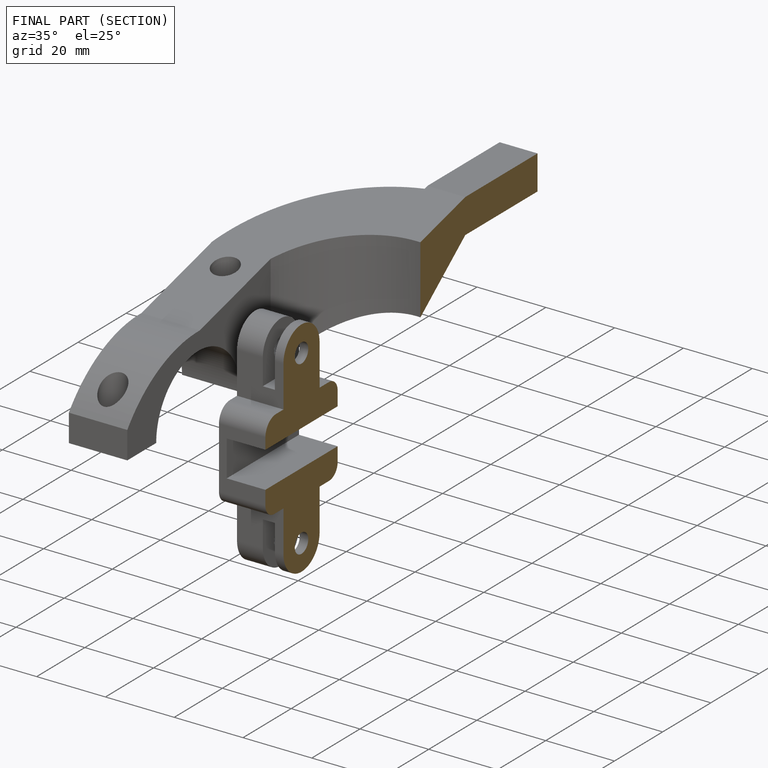
[diagram: finished part — half-section view (interior)]
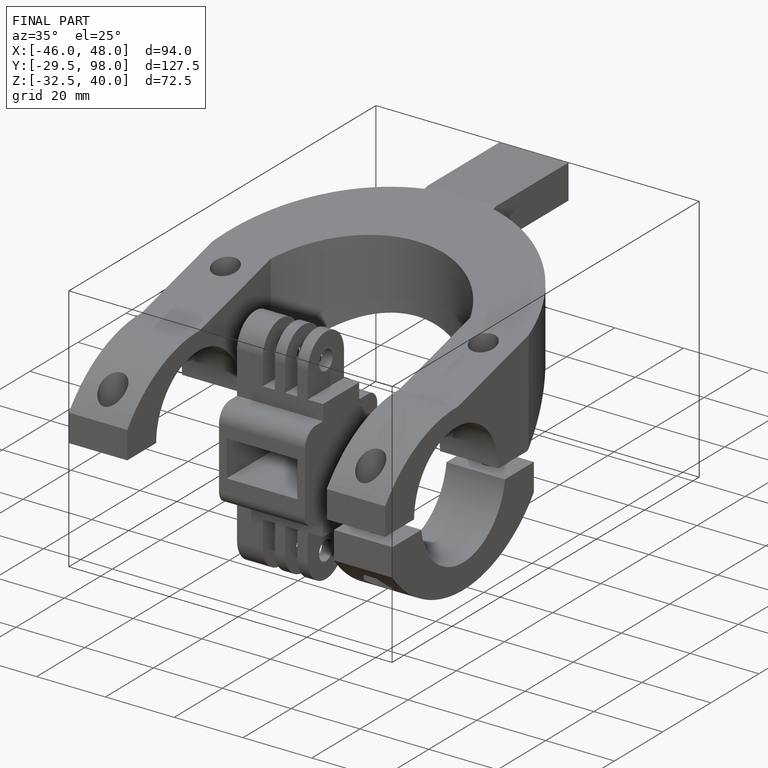
[diagram: finished part — iso view with bounding-box wireframe]
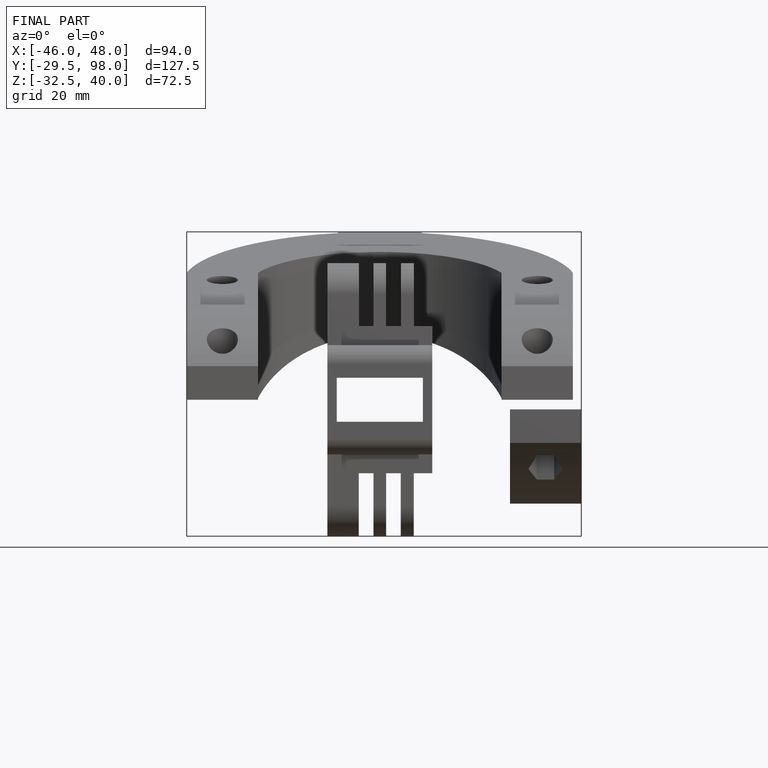
[diagram: finished part — front view with bounding-box wireframe]
